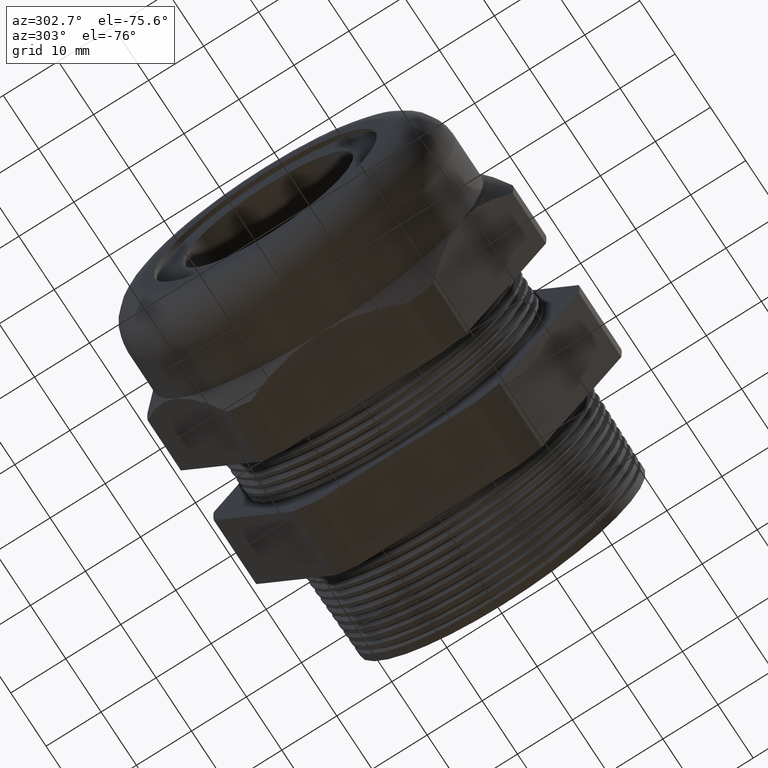
[diagram: clean part render]
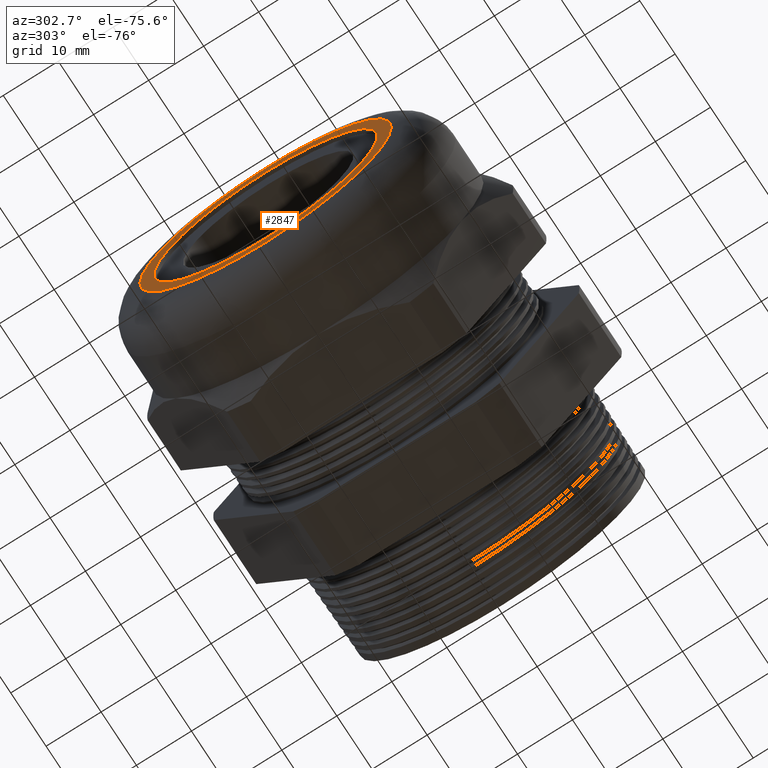
[diagram: same view with one face highlighted and labeled with its STEP entity id]
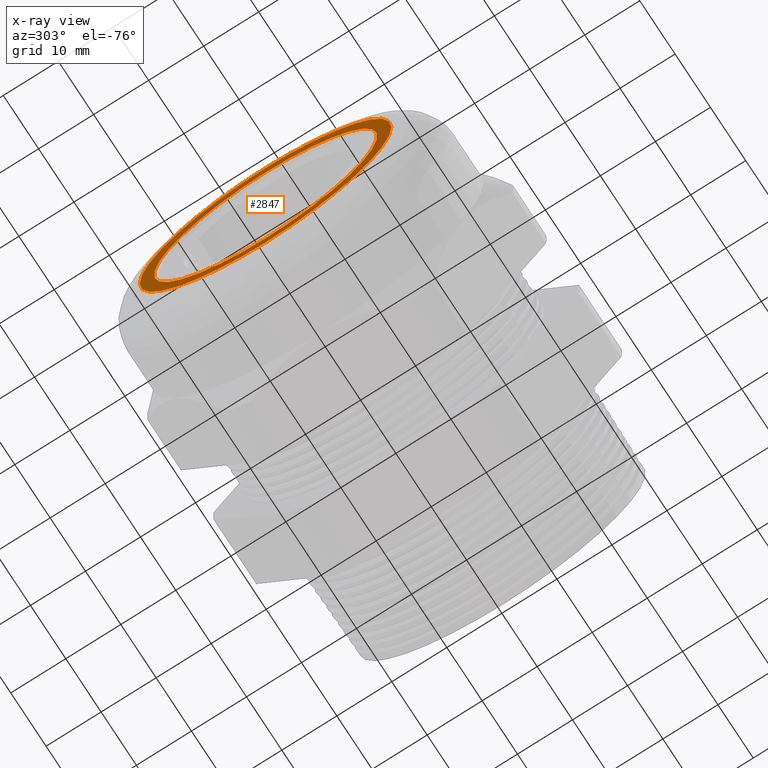
[diagram: x-ray of the same camera — body ghosted, the highlighted face saturated]
A machine part, auxiliary view. The second image highlights one B-rep face of the part: STEP entity #2847.
The next image is the same camera in x-ray: the body ghosted, the highlighted face saturated — about 0% of this face is hidden behind the body in this view.
In plain terms, the highlighted planar face has unit normal (-1, 0, 0).
Its self-contained STEP definition (entity closure, byte-faithful):
#118 = DIRECTION ( 'NONE',  ( 0.0000000000000000000, 0.0000000000000000000, 1.000000000000000000 ) ) ;
#119 = DIRECTION ( 'NONE',  ( -1.000000000000000000, 0.0000000000000000000, 0.0000000000000000000 ) ) ;
#120 = CARTESIAN_POINT ( 'NONE',  ( -2.239999999999999800, 1.179999999999999900, 0.0000000000000000000 ) ) ;
#121 = AXIS2_PLACEMENT_3D ( 'NONE', #120, #119, #118 ) ;
#122 = PLANE ( 'NONE',  #121 ) ;
#123 = FACE_BOUND ( 'NONE', #2834, .T. ) ;
#124 = FACE_OUTER_BOUND ( 'NONE', #2837, .T. ) ;
#131 = DIRECTION ( 'NONE',  ( 0.0000000000000000000, 0.0000000000000000000, 1.000000000000000000 ) ) ;
#132 = DIRECTION ( 'NONE',  ( -1.000000000000000000, 0.0000000000000000000, 0.0000000000000000000 ) ) ;
#133 = CARTESIAN_POINT ( 'NONE',  ( -2.239999999999999800, 0.0000000000000000000, 0.0000000000000000000 ) ) ;
#134 = AXIS2_PLACEMENT_3D ( 'NONE', #133, #132, #131 ) ;
#135 = CIRCLE ( 'NONE', #134, 0.8999999999999999100 ) ;
#372 = DIRECTION ( 'NONE',  ( 0.0000000000000000000, 0.0000000000000000000, -1.000000000000000000 ) ) ;
#373 = DIRECTION ( 'NONE',  ( 1.000000000000000000, 0.0000000000000000000, 0.0000000000000000000 ) ) ;
#374 = CARTESIAN_POINT ( 'NONE',  ( -2.239999999999999800, 0.0000000000000000000, 0.0000000000000000000 ) ) ;
#375 = AXIS2_PLACEMENT_3D ( 'NONE', #374, #373, #372 ) ;
#376 = CIRCLE ( 'NONE', #375, 0.7987499999999999600 ) ;
#1068 = CARTESIAN_POINT ( 'NONE',  ( -2.239999999999999800, 9.781866308189482700E-017, 0.7987499999999999600 ) ) ;
#1069 = DIRECTION ( 'NONE',  ( 0.0000000000000000000, 0.0000000000000000000, -1.000000000000000000 ) ) ;
#1070 = DIRECTION ( 'NONE',  ( 1.000000000000000000, 0.0000000000000000000, 0.0000000000000000000 ) ) ;
#1071 = CARTESIAN_POINT ( 'NONE',  ( -2.239999999999999800, 0.0000000000000000000, 0.0000000000000000000 ) ) ;
#1072 = AXIS2_PLACEMENT_3D ( 'NONE', #1071, #1070, #1069 ) ;
#1073 = CIRCLE ( 'NONE', #1072, 0.7987499999999999600 ) ;
#1074 = CARTESIAN_POINT ( 'NONE',  ( -2.239999999999999800, 0.0000000000000000000, -0.7987499999999999600 ) ) ;
#1525 = CARTESIAN_POINT ( 'NONE',  ( -2.239999999999999800, 0.0000000000000000000, 0.8999999999999999100 ) ) ;
#1526 = DIRECTION ( 'NONE',  ( 0.0000000000000000000, 0.0000000000000000000, 1.000000000000000000 ) ) ;
#1527 = DIRECTION ( 'NONE',  ( -1.000000000000000000, 0.0000000000000000000, 0.0000000000000000000 ) ) ;
#1528 = CARTESIAN_POINT ( 'NONE',  ( -2.239999999999999800, 0.0000000000000000000, 0.0000000000000000000 ) ) ;
#1529 = AXIS2_PLACEMENT_3D ( 'NONE', #1528, #1527, #1526 ) ;
#1530 = CIRCLE ( 'NONE', #1529, 0.8999999999999999100 ) ;
#1531 = CARTESIAN_POINT ( 'NONE',  ( -2.239999999999999800, 1.273632671113247200E-016, -0.8999999999999999100 ) ) ;
#2829 = ORIENTED_EDGE ( 'NONE', *, *, #3331, .T. ) ;
#2830 = ORIENTED_EDGE ( 'NONE', *, *, #2986, .T. ) ;
#2832 = ORIENTED_EDGE ( 'NONE', *, *, #2833, .T. ) ;
#2833 = EDGE_CURVE ( 'NONE', #3594, #3597, #135, .T. ) ;
#2834 = EDGE_LOOP ( 'NONE', ( #2830, #2829 ) ) ;
#2836 = ORIENTED_EDGE ( 'NONE', *, *, #3596, .T. ) ;
#2837 = EDGE_LOOP ( 'NONE', ( #2836, #2832 ) ) ;
#2847 = ADVANCED_FACE ( 'NONE', ( #124, #123 ), #122, .T. ) ;
#2986 = EDGE_CURVE ( 'NONE', #3330, #3332, #376, .T. ) ;
#3330 = VERTEX_POINT ( 'NONE', #1074 ) ;
#3331 = EDGE_CURVE ( 'NONE', #3332, #3330, #1073, .T. ) ;
#3332 = VERTEX_POINT ( 'NONE', #1068 ) ;
#3594 = VERTEX_POINT ( 'NONE', #1531 ) ;
#3596 = EDGE_CURVE ( 'NONE', #3597, #3594, #1530, .T. ) ;
#3597 = VERTEX_POINT ( 'NONE', #1525 ) ;